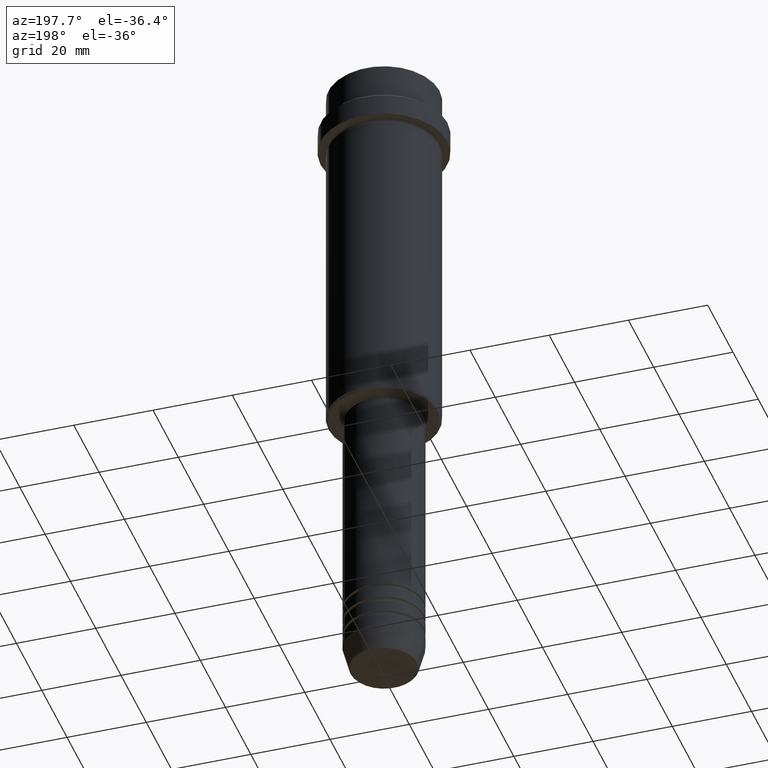
[diagram: clean part render]
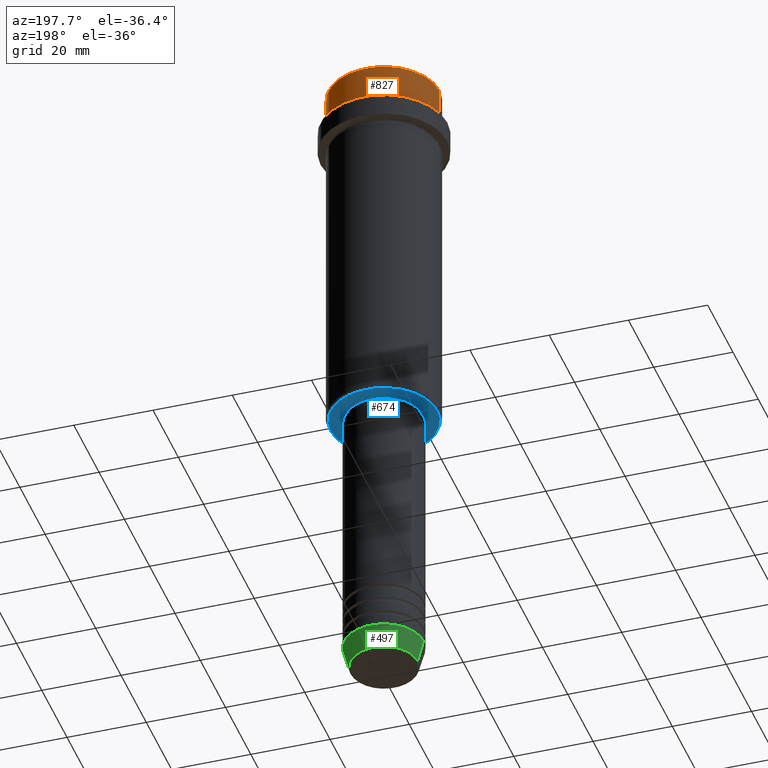
[diagram: same view with three faces highlighted in distinct colors, each labeled with its STEP entity id]
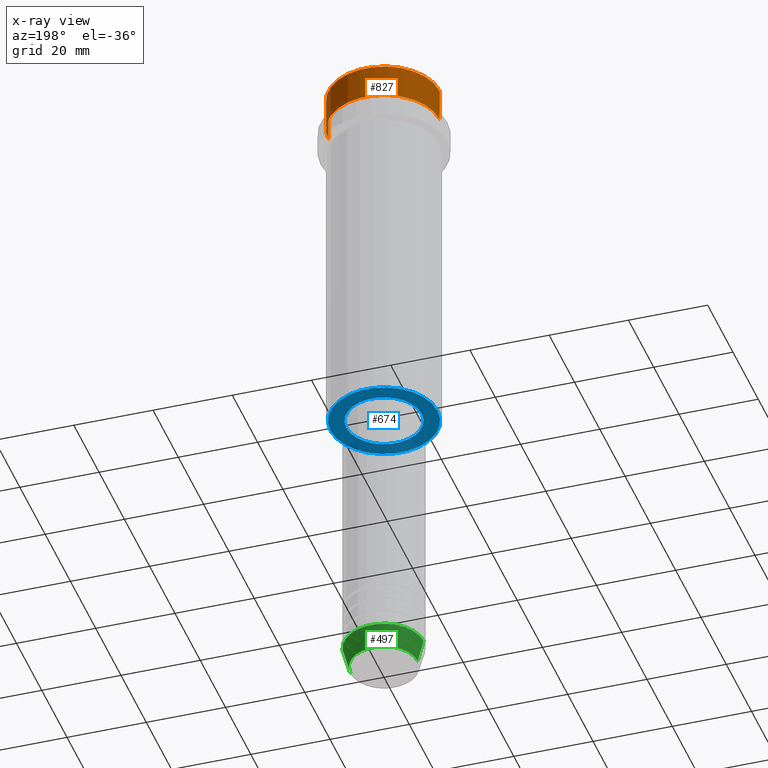
[diagram: x-ray of the same camera — body ghosted, the three highlighted faces saturated]
A machine part, auxiliary view with three faces highlighted in distinct colors.
The next image is the same camera in x-ray (body ghosted, the three faces saturated) — at least one of them is partly hidden behind the body in this view.
Their STEP definitions:

[orange] entity #827 — the highlighted cylindrical surface (partial cylindrical patch) has radius 14 mm, axis along (-0, -0, 1).
#2 = CYLINDRICAL_SURFACE ( 'NONE', #1053, 13.99999999999998934 ) ;
#9 = DIRECTION ( 'NONE',  ( 1.000000000000000000, 0.000000000000000000, 0.000000000000000000 ) ) ;
#54 = ORIENTED_EDGE ( 'NONE', *, *, #169, .T. ) ;
#94 = VECTOR ( 'NONE', #932, 1000.000000000000000 ) ;
#165 = CARTESIAN_POINT ( 'NONE',  ( -13.99999999999998934, 1.714505518806293257E-15, -0.4999999999999987232 ) ) ;
#169 = EDGE_CURVE ( 'NONE', #792, #1006, #821, .T. ) ;
#212 = DIRECTION ( 'NONE',  ( -0.000000000000000000, -0.000000000000000000, 1.000000000000000000 ) ) ;
#236 = CARTESIAN_POINT ( 'NONE',  ( -13.99999999999997868, 1.714505518806292666E-15, -8.999999999999998224 ) ) ;
#312 = EDGE_CURVE ( 'NONE', #1006, #349, #795, .T. ) ;
#349 = VERTEX_POINT ( 'NONE', #165 ) ;
#371 = EDGE_CURVE ( 'NONE', #792, #721, #828, .T. ) ;
#380 = AXIS2_PLACEMENT_3D ( 'NONE', #1317, #212, #9 ) ;
#416 = DIRECTION ( 'NONE',  ( 1.000000000000000000, 0.000000000000000000, 0.000000000000000000 ) ) ;
#442 = FACE_OUTER_BOUND ( 'NONE', #458, .T. ) ;
#458 = EDGE_LOOP ( 'NONE', ( #54, #931, #1309, #796 ) ) ;
#482 = CARTESIAN_POINT ( 'NONE',  ( 13.99999999999998934, 0.000000000000000000, -0.4999999999999987232 ) ) ;
#484 = CARTESIAN_POINT ( 'NONE',  ( 13.99999999999998934, 0.000000000000000000, 0.000000000000000000 ) ) ;
#580 = CARTESIAN_POINT ( 'NONE',  ( -13.99999999999998934, 1.714505518806293257E-15, 0.000000000000000000 ) ) ;
#618 = AXIS2_PLACEMENT_3D ( 'NONE', #649, #1186, #416 ) ;
#649 = CARTESIAN_POINT ( 'NONE',  ( 0.000000000000000000, 0.000000000000000000, -0.4999999999999987232 ) ) ;
#659 = DIRECTION ( 'NONE',  ( 1.000000000000000000, 0.000000000000000000, 0.000000000000000000 ) ) ;
#721 = VERTEX_POINT ( 'NONE', #482 ) ;
#722 = CARTESIAN_POINT ( 'NONE',  ( 13.99999999999997868, 0.000000000000000000, -8.999999999999998224 ) ) ;
#758 = VECTOR ( 'NONE', #1344, 1000.000000000000000 ) ;
#792 = VERTEX_POINT ( 'NONE', #722 ) ;
#795 = LINE ( 'NONE', #580, #758 ) ;
#796 = ORIENTED_EDGE ( 'NONE', *, *, #371, .F. ) ;
#821 = CIRCLE ( 'NONE', #380, 13.99999999999997868 ) ;
#827 = ADVANCED_FACE ( 'NONE', ( #442 ), #2, .T. ) ;
#828 = LINE ( 'NONE', #484, #94 ) ;
#885 = EDGE_CURVE ( 'NONE', #349, #721, #1238, .T. ) ;
#931 = ORIENTED_EDGE ( 'NONE', *, *, #312, .T. ) ;
#932 = DIRECTION ( 'NONE',  ( -0.000000000000000000, -0.000000000000000000, 1.000000000000000000 ) ) ;
#1006 = VERTEX_POINT ( 'NONE', #236 ) ;
#1053 = AXIS2_PLACEMENT_3D ( 'NONE', #1399, #1179, #659 ) ;
#1179 = DIRECTION ( 'NONE',  ( -0.000000000000000000, -0.000000000000000000, 1.000000000000000000 ) ) ;
#1186 = DIRECTION ( 'NONE',  ( 0.000000000000000000, 0.000000000000000000, -1.000000000000000000 ) ) ;
#1238 = CIRCLE ( 'NONE', #618, 13.99999999999998934 ) ;
#1309 = ORIENTED_EDGE ( 'NONE', *, *, #885, .T. ) ;
#1317 = CARTESIAN_POINT ( 'NONE',  ( 0.000000000000000000, 0.000000000000000000, -8.999999999999998224 ) ) ;
#1344 = DIRECTION ( 'NONE',  ( -0.000000000000000000, -0.000000000000000000, 1.000000000000000000 ) ) ;
#1399 = CARTESIAN_POINT ( 'NONE',  ( 0.000000000000000000, 0.000000000000000000, 0.000000000000000000 ) ) ;

[blue] entity #674 — the highlighted planar face has unit normal (0, 0, -1).
#80 = ORIENTED_EDGE ( 'NONE', *, *, #157, .T. ) ;
#91 = DIRECTION ( 'NONE',  ( -0.000000000000000000, -0.000000000000000000, 1.000000000000000000 ) ) ;
#139 = CIRCLE ( 'NONE', #899, 9.499999999999994671 ) ;
#157 = EDGE_CURVE ( 'NONE', #585, #760, #1026, .T. ) ;
#163 = DIRECTION ( 'NONE',  ( -1.000000000000000000, 0.000000000000000000, -0.000000000000000000 ) ) ;
#164 = ORIENTED_EDGE ( 'NONE', *, *, #1348, .T. ) ;
#171 = PLANE ( 'NONE',  #947 ) ;
#225 = EDGE_LOOP ( 'NONE', ( #164, #80 ) ) ;
#358 = AXIS2_PLACEMENT_3D ( 'NONE', #696, #603, #1258 ) ;
#390 = DIRECTION ( 'NONE',  ( 0.000000000000000000, 0.000000000000000000, -1.000000000000000000 ) ) ;
#401 = DIRECTION ( 'NONE',  ( -1.000000000000000000, 0.000000000000000000, 0.000000000000000000 ) ) ;
#469 = EDGE_LOOP ( 'NONE', ( #1255, #1232 ) ) ;
#472 = AXIS2_PLACEMENT_3D ( 'NONE', #1208, #766, #1300 ) ;
#585 = VERTEX_POINT ( 'NONE', #1128 ) ;
#603 = DIRECTION ( 'NONE',  ( -0.000000000000000000, -0.000000000000000000, 1.000000000000000000 ) ) ;
#639 = CARTESIAN_POINT ( 'NONE',  ( 9.499999999999994671, 0.000000000000000000, -95.99999999999997158 ) ) ;
#667 = CIRCLE ( 'NONE', #1241, 13.50000000000002487 ) ;
#674 = ADVANCED_FACE ( 'NONE', ( #815, #1061 ), #171, .T. ) ;
#696 = CARTESIAN_POINT ( 'NONE',  ( 0.000000000000000000, 0.000000000000000000, -95.99999999999997158 ) ) ;
#760 = VERTEX_POINT ( 'NONE', #1051 ) ;
#766 = DIRECTION ( 'NONE',  ( 0.000000000000000000, 0.000000000000000000, -1.000000000000000000 ) ) ;
#815 = FACE_OUTER_BOUND ( 'NONE', #225, .T. ) ;
#899 = AXIS2_PLACEMENT_3D ( 'NONE', #964, #91, #1296 ) ;
#911 = VERTEX_POINT ( 'NONE', #639 ) ;
#929 = CARTESIAN_POINT ( 'NONE',  ( 0.000000000000000000, 14.00000000000000000, -95.99999999999997158 ) ) ;
#947 = AXIS2_PLACEMENT_3D ( 'NONE', #929, #390, #163 ) ;
#964 = CARTESIAN_POINT ( 'NONE',  ( 0.000000000000000000, 0.000000000000000000, -95.99999999999997158 ) ) ;
#1026 = CIRCLE ( 'NONE', #472, 13.50000000000002487 ) ;
#1051 = CARTESIAN_POINT ( 'NONE',  ( 13.50000000000002487, 0.000000000000000000, -95.99999999999997158 ) ) ;
#1061 = FACE_BOUND ( 'NONE', #469, .T. ) ;
#1110 = CARTESIAN_POINT ( 'NONE',  ( -9.499999999999994671, 1.163414459189984894E-15, -95.99999999999997158 ) ) ;
#1113 = EDGE_CURVE ( 'NONE', #911, #1275, #1126, .T. ) ;
#1126 = CIRCLE ( 'NONE', #358, 9.499999999999994671 ) ;
#1128 = CARTESIAN_POINT ( 'NONE',  ( -13.50000000000002487, 1.683889348827611640E-15, -95.99999999999997158 ) ) ;
#1159 = DIRECTION ( 'NONE',  ( 0.000000000000000000, 0.000000000000000000, -1.000000000000000000 ) ) ;
#1208 = CARTESIAN_POINT ( 'NONE',  ( 0.000000000000000000, 0.000000000000000000, -95.99999999999997158 ) ) ;
#1231 = EDGE_CURVE ( 'NONE', #1275, #911, #139, .T. ) ;
#1232 = ORIENTED_EDGE ( 'NONE', *, *, #1231, .T. ) ;
#1241 = AXIS2_PLACEMENT_3D ( 'NONE', #1287, #1159, #401 ) ;
#1255 = ORIENTED_EDGE ( 'NONE', *, *, #1113, .T. ) ;
#1258 = DIRECTION ( 'NONE',  ( 1.000000000000000000, 0.000000000000000000, 0.000000000000000000 ) ) ;
#1275 = VERTEX_POINT ( 'NONE', #1110 ) ;
#1287 = CARTESIAN_POINT ( 'NONE',  ( 0.000000000000000000, 0.000000000000000000, -95.99999999999997158 ) ) ;
#1296 = DIRECTION ( 'NONE',  ( 1.000000000000000000, 0.000000000000000000, 0.000000000000000000 ) ) ;
#1300 = DIRECTION ( 'NONE',  ( -1.000000000000000000, 0.000000000000000000, 0.000000000000000000 ) ) ;
#1348 = EDGE_CURVE ( 'NONE', #760, #585, #667, .T. ) ;

[green] entity #497 — the highlighted conical surface has half-angle 15 deg.
#20 = CARTESIAN_POINT ( 'NONE',  ( 8.491604264568309191, 0.000000000000000000, -169.6294095225512990 ) ) ;
#61 = DIRECTION ( 'NONE',  ( -0.2588190451025211281, 3.169619151431769872E-17, 0.9659258262890680902 ) ) ;
#178 = DIRECTION ( 'NONE',  ( 1.000000000000000000, 0.000000000000000000, 0.000000000000000000 ) ) ;
#223 = DIRECTION ( 'NONE',  ( -0.000000000000000000, -0.000000000000000000, 1.000000000000000000 ) ) ;
#229 = CIRCLE ( 'NONE', #781, 8.491604264568309191 ) ;
#233 = CARTESIAN_POINT ( 'NONE',  ( -10.00000000000000000, 1.224646799147353256E-15, -164.0000000000000000 ) ) ;
#295 = VERTEX_POINT ( 'NONE', #233 ) ;
#316 = AXIS2_PLACEMENT_3D ( 'NONE', #1218, #1409, #1414 ) ;
#373 = VERTEX_POINT ( 'NONE', #1256 ) ;
#381 = LINE ( 'NONE', #393, #1376 ) ;
#388 = ORIENTED_EDGE ( 'NONE', *, *, #1320, .F. ) ;
#393 = CARTESIAN_POINT ( 'NONE',  ( 10.00000000000000000, 0.000000000000000000, -164.0000000000000000 ) ) ;
#486 = LINE ( 'NONE', #934, #621 ) ;
#497 = ADVANCED_FACE ( 'NONE', ( #554 ), #549, .T. ) ;
#549 = CONICAL_SURFACE ( 'NONE', #316, 10.00000000000000000, 0.2617993877991498519 ) ;
#554 = FACE_OUTER_BOUND ( 'NONE', #1253, .T. ) ;
#591 = DIRECTION ( 'NONE',  ( -0.000000000000000000, -0.000000000000000000, 1.000000000000000000 ) ) ;
#607 = VERTEX_POINT ( 'NONE', #20 ) ;
#621 = VECTOR ( 'NONE', #61, 1000.000000000000114 ) ;
#630 = ORIENTED_EDGE ( 'NONE', *, *, #1133, .T. ) ;
#663 = ORIENTED_EDGE ( 'NONE', *, *, #817, .T. ) ;
#781 = AXIS2_PLACEMENT_3D ( 'NONE', #1284, #591, #178 ) ;
#784 = CIRCLE ( 'NONE', #1032, 10.00000000000000000 ) ;
#817 = EDGE_CURVE ( 'NONE', #607, #1041, #229, .T. ) ;
#934 = CARTESIAN_POINT ( 'NONE',  ( -10.00000000000000000, 1.224646799147353256E-15, -164.0000000000000000 ) ) ;
#1032 = AXIS2_PLACEMENT_3D ( 'NONE', #1108, #223, #1098 ) ;
#1041 = VERTEX_POINT ( 'NONE', #1246 ) ;
#1045 = DIRECTION ( 'NONE',  ( 0.2588190451025211281, 0.000000000000000000, 0.9659258262890680902 ) ) ;
#1098 = DIRECTION ( 'NONE',  ( 1.000000000000000000, 0.000000000000000000, 0.000000000000000000 ) ) ;
#1108 = CARTESIAN_POINT ( 'NONE',  ( 0.000000000000000000, 0.000000000000000000, -164.0000000000000000 ) ) ;
#1133 = EDGE_CURVE ( 'NONE', #1041, #295, #486, .T. ) ;
#1218 = CARTESIAN_POINT ( 'NONE',  ( 0.000000000000000000, 0.000000000000000000, -164.0000000000000000 ) ) ;
#1239 = ORIENTED_EDGE ( 'NONE', *, *, #1408, .F. ) ;
#1246 = CARTESIAN_POINT ( 'NONE',  ( -8.491604264568309191, 1.132284198685156387E-15, -169.6294095225512990 ) ) ;
#1253 = EDGE_LOOP ( 'NONE', ( #663, #630, #1239, #388 ) ) ;
#1256 = CARTESIAN_POINT ( 'NONE',  ( 10.00000000000000000, 0.000000000000000000, -164.0000000000000000 ) ) ;
#1284 = CARTESIAN_POINT ( 'NONE',  ( 0.000000000000000000, 0.000000000000000000, -169.6294095225512990 ) ) ;
#1320 = EDGE_CURVE ( 'NONE', #607, #373, #381, .T. ) ;
#1376 = VECTOR ( 'NONE', #1045, 1000.000000000000114 ) ;
#1408 = EDGE_CURVE ( 'NONE', #373, #295, #784, .T. ) ;
#1409 = DIRECTION ( 'NONE',  ( -0.000000000000000000, -0.000000000000000000, 1.000000000000000000 ) ) ;
#1414 = DIRECTION ( 'NONE',  ( 1.000000000000000000, 0.000000000000000000, 0.000000000000000000 ) ) ;